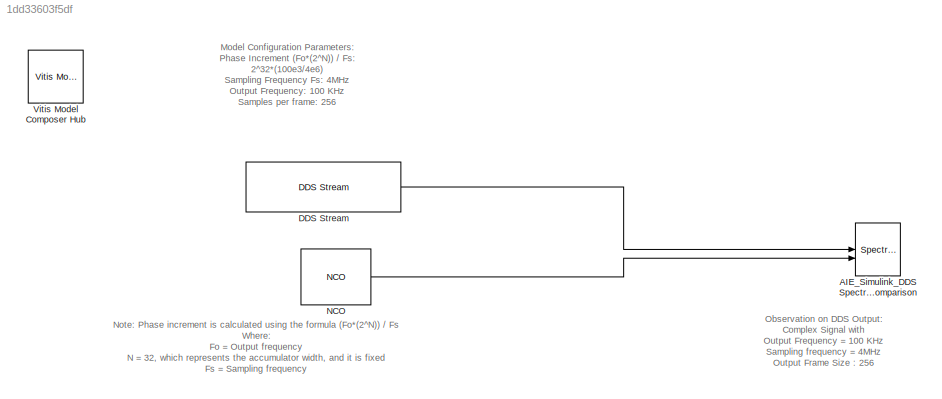
MODEL slx_1dd33603f5df
KIND model
CONFIG AbsTol = auto
CONFIG EnableMultiTasking = off
CONFIG FixedStep = auto
CONFIG MaxStep = auto
CONFIG MinStep = auto
CONFIG RelTol = 1e-3
CONFIG SampleTimeConstraint = Unconstrained
CONFIG SolverName = VariableStepAuto
CONFIG StartTime = 0.0
CONFIG StopTime = 0.01
BLOCK [SpectrumAnalyzer] AIE_Simulink_DDS Spectrum_Comparison
  AllowFFTLengthLessThanSamplesPerUpdate = on
  AveragingMethod = Exponential
  ChannelNames = [""]
  DefaultConfigurationName = spbscopes.SpectrumAnalyzerBlockCfg
  NumInputPorts = 2
  ScopeSpecificationString = spbscopes.SpectrumAnalyzerBlockCfg('CurrentConfiguration', extmgr.ConfigurationSet(extmgr.Configuration('Core','General UI',true,'FigureColor',[0.16        0.16        0.16]),extmgr.Configuration('Visuals','Spectrum',true,'Title','','YLabel','','MinYLim','-37.9548','MaxYLim','34.8286','Legend',true,'AxesProperties',struct('XGrid',{'on','on'},'YGrid',{'on','on'},'ZGrid',{'on','on'},'Color',{[0 0 0]...<+2406ch>
  ShowLegend = on
  WasSavedAsWebScope = on
BLOCK [Reference] DDS Stream  REF=aieDSP/DDS Stream
  SourceBlock = aieDSP/DDS Stream
  SourceType = DDS Stream
BLOCK [Reference] NCO  REF=dspsigops/NCO
  SourceBlock = dspsigops/NCO
  SourceType = NCO
BLOCK [Reference] Vitis Model Composer Hub  REF=vmcUtilities/Vitis Model Composer Hub
  SourceBlock = vmcUtilities/Vitis Model Composer Hub
  SourceType = VMC Hub
  Tag = genX
  UserDataPersistent = on
ANNOTATION (root): Note : Phase increment is calculated using the formula (Fo*(2^N)) / Fs Where: Fo = Output frequency N = 32, which represents the accumulator width, and it is fixed Fs = Sampling frequency
ANNOTATION (root): Observation on DDS Output: Complex Signal with Output Frequency = 100 KHz Sampling frequency = 4MHz Output Frame Size : 256
ANNOTATION (root): Model Configuration Parameters: Phase Increment (Fo*(2^N)) / Fs: 2^32*(100e3/4e6) Sampling Frequency Fs: 4MHz Output Frequency: 100 KHz Samples per frame: 256
LINE DDS Stream:1 -> AIE_Simulink_DDS Spectrum_Comparison:1
LINE NCO:1 -> AIE_Simulink_DDS Spectrum_Comparison:2
